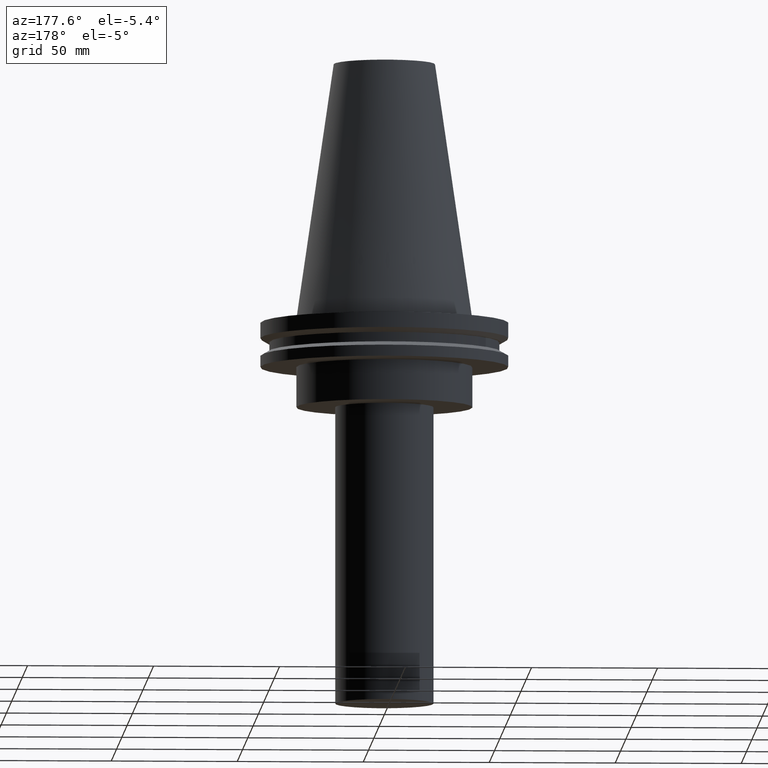
[diagram: clean part render]
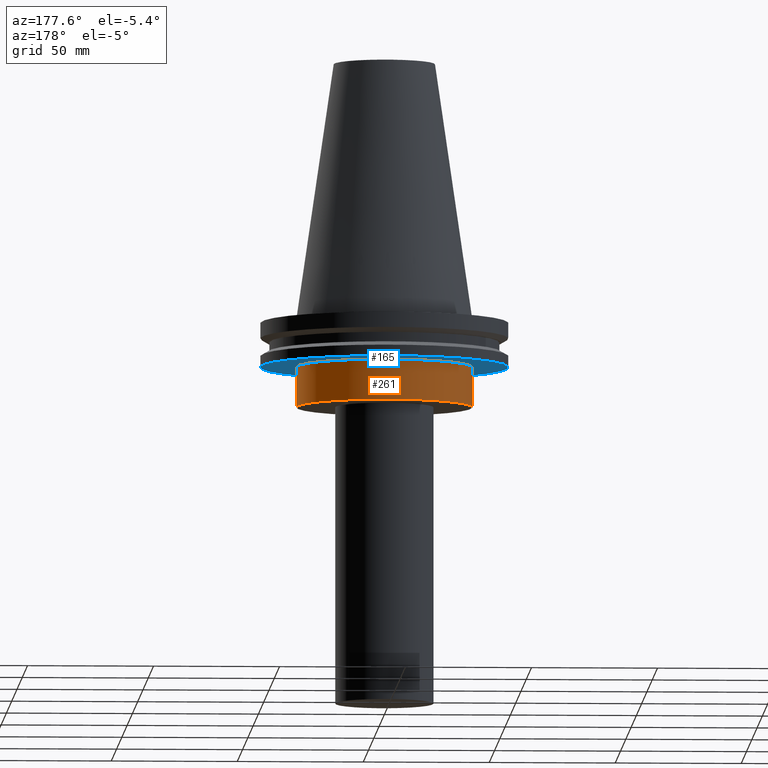
[diagram: same view with the hole feature highlighted: cylindrical wall and planar end face, labeled with their STEP entity ids]
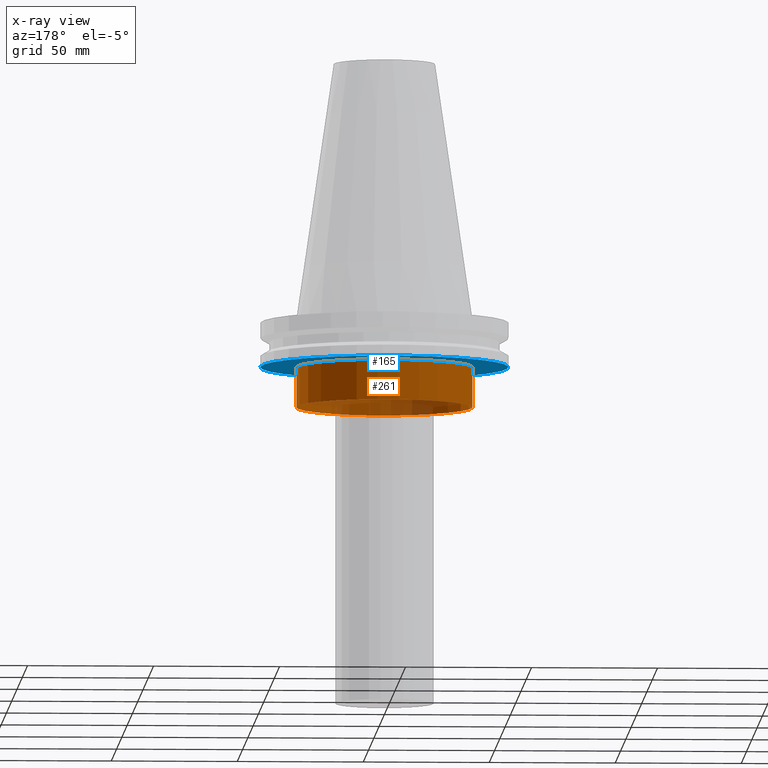
[diagram: x-ray of the same camera — body ghosted, the hole faces saturated]
A machine part, auxiliary view. The highlighted faces form one hole feature of diameter 69.85 mm: the cylindrical wall (entity #261, orange) and its adjacent planar end face (entity #165, blue) — they share a circular edge in the B-rep.
The next image is the same camera in x-ray (body ghosted, the hole faces saturated) — the bore reads through the body.
Wall:
#42 = AXIS2_PLACEMENT_3D ( 'NONE', #203, #48, #166 ) ;
#46 = CARTESIAN_POINT ( 'NONE',  ( 0.000000000000000000, 0.000000000000000000, -19.04999999999999716 ) ) ;
#48 = DIRECTION ( 'NONE',  ( -0.000000000000000000, -0.000000000000000000, 1.000000000000000000 ) ) ;
#50 = DIRECTION ( 'NONE',  ( -0.000000000000000000, -0.000000000000000000, 1.000000000000000000 ) ) ;
#71 = CYLINDRICAL_SURFACE ( 'NONE', #194, 34.92499999999999716 ) ;
#75 = DIRECTION ( 'NONE',  ( 1.000000000000000000, 0.000000000000000000, 0.000000000000000000 ) ) ;
#109 = FACE_OUTER_BOUND ( 'NONE', #160, .T. ) ;
#116 = CARTESIAN_POINT ( 'NONE',  ( 34.92499999999999716, 0.000000000000000000, -19.04999999999999716 ) ) ;
#137 = ORIENTED_EDGE ( 'NONE', *, *, #320, .T. ) ;
#160 = EDGE_LOOP ( 'NONE', ( #317 ) ) ;
#166 = DIRECTION ( 'NONE',  ( 1.000000000000000000, 0.000000000000000000, 0.000000000000000000 ) ) ;
#170 = DIRECTION ( 'NONE',  ( 1.000000000000000000, 0.000000000000000000, 0.000000000000000000 ) ) ;
#187 = VERTEX_POINT ( 'NONE', #243 ) ;
#194 = AXIS2_PLACEMENT_3D ( 'NONE', #378, #50, #170 ) ;
#203 = CARTESIAN_POINT ( 'NONE',  ( 0.000000000000000000, 0.000000000000000000, -35.00000000000000000 ) ) ;
#220 = AXIS2_PLACEMENT_3D ( 'NONE', #46, #232, #75 ) ;
#227 = CIRCLE ( 'NONE', #42, 34.92499999999999716 ) ;
#232 = DIRECTION ( 'NONE',  ( -0.000000000000000000, -0.000000000000000000, 1.000000000000000000 ) ) ;
#243 = CARTESIAN_POINT ( 'NONE',  ( 34.92499999999999716, 0.000000000000000000, -35.00000000000000000 ) ) ;
#261 = ADVANCED_FACE ( 'NONE', ( #109, #344 ), #71, .T. ) ;
#298 = EDGE_LOOP ( 'NONE', ( #137 ) ) ;
#299 = CIRCLE ( 'NONE', #220, 34.92499999999999716 ) ;
#314 = EDGE_CURVE ( 'NONE', #393, #393, #299, .T. ) ;
#317 = ORIENTED_EDGE ( 'NONE', *, *, #314, .F. ) ;
#320 = EDGE_CURVE ( 'NONE', #187, #187, #227, .T. ) ;
#344 = FACE_OUTER_BOUND ( 'NONE', #298, .T. ) ;
#378 = CARTESIAN_POINT ( 'NONE',  ( 0.000000000000000000, 0.000000000000000000, 101.5999999999999943 ) ) ;
#393 = VERTEX_POINT ( 'NONE', #116 ) ;
End face:
#4 = DIRECTION ( 'NONE',  ( -0.000000000000000000, -0.000000000000000000, 1.000000000000000000 ) ) ;
#8 = ORIENTED_EDGE ( 'NONE', *, *, #314, .T. ) ;
#39 = CARTESIAN_POINT ( 'NONE',  ( 0.000000000000000000, 49.21499999999998920, -19.04999999999999716 ) ) ;
#46 = CARTESIAN_POINT ( 'NONE',  ( 0.000000000000000000, 0.000000000000000000, -19.04999999999999716 ) ) ;
#74 = EDGE_CURVE ( 'NONE', #140, #140, #181, .T. ) ;
#75 = DIRECTION ( 'NONE',  ( 1.000000000000000000, 0.000000000000000000, 0.000000000000000000 ) ) ;
#116 = CARTESIAN_POINT ( 'NONE',  ( 34.92499999999999716, 0.000000000000000000, -19.04999999999999716 ) ) ;
#140 = VERTEX_POINT ( 'NONE', #214 ) ;
#161 = FACE_OUTER_BOUND ( 'NONE', #204, .T. ) ;
#165 = ADVANCED_FACE ( 'NONE', ( #161, #188 ), #366, .F. ) ;
#178 = AXIS2_PLACEMENT_3D ( 'NONE', #39, #394, #205 ) ;
#181 = CIRCLE ( 'NONE', #364, 49.21499999999998920 ) ;
#188 = FACE_BOUND ( 'NONE', #206, .T. ) ;
#204 = EDGE_LOOP ( 'NONE', ( #329 ) ) ;
#205 = DIRECTION ( 'NONE',  ( 1.000000000000000000, 0.000000000000000000, 0.000000000000000000 ) ) ;
#206 = EDGE_LOOP ( 'NONE', ( #8 ) ) ;
#214 = CARTESIAN_POINT ( 'NONE',  ( 49.21499999999998920, 0.000000000000000000, -19.04999999999999716 ) ) ;
#220 = AXIS2_PLACEMENT_3D ( 'NONE', #46, #232, #75 ) ;
#232 = DIRECTION ( 'NONE',  ( -0.000000000000000000, -0.000000000000000000, 1.000000000000000000 ) ) ;
#247 = DIRECTION ( 'NONE',  ( 1.000000000000000000, 0.000000000000000000, 0.000000000000000000 ) ) ;
#255 = CARTESIAN_POINT ( 'NONE',  ( 0.000000000000000000, 0.000000000000000000, -19.04999999999999716 ) ) ;
#299 = CIRCLE ( 'NONE', #220, 34.92499999999999716 ) ;
#314 = EDGE_CURVE ( 'NONE', #393, #393, #299, .T. ) ;
#329 = ORIENTED_EDGE ( 'NONE', *, *, #74, .F. ) ;
#364 = AXIS2_PLACEMENT_3D ( 'NONE', #255, #4, #247 ) ;
#366 = PLANE ( 'NONE',  #178 ) ;
#393 = VERTEX_POINT ( 'NONE', #116 ) ;
#394 = DIRECTION ( 'NONE',  ( 0.000000000000000000, -0.000000000000000000, 1.000000000000000000 ) ) ;